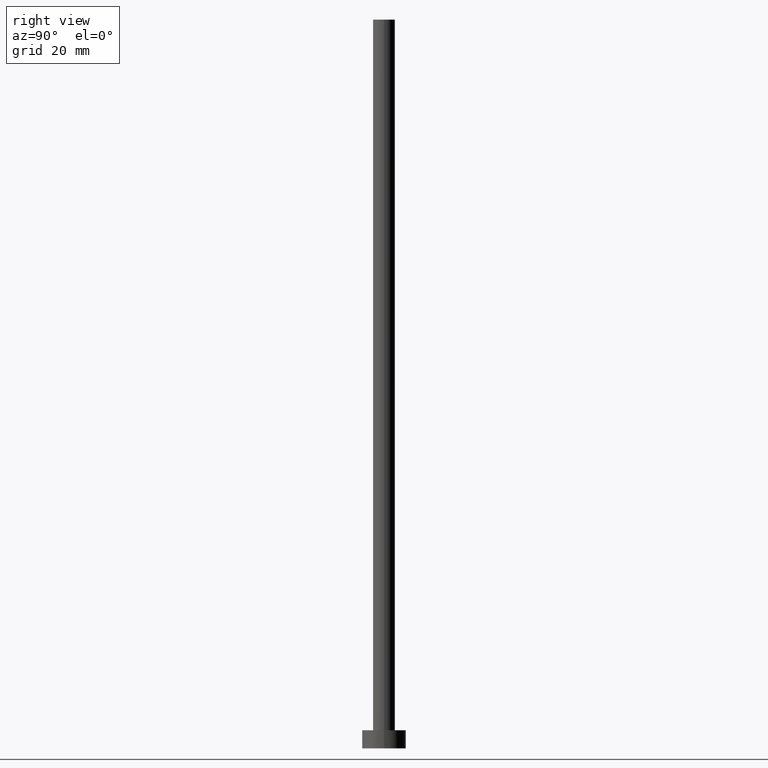
[diagram: clean part render]
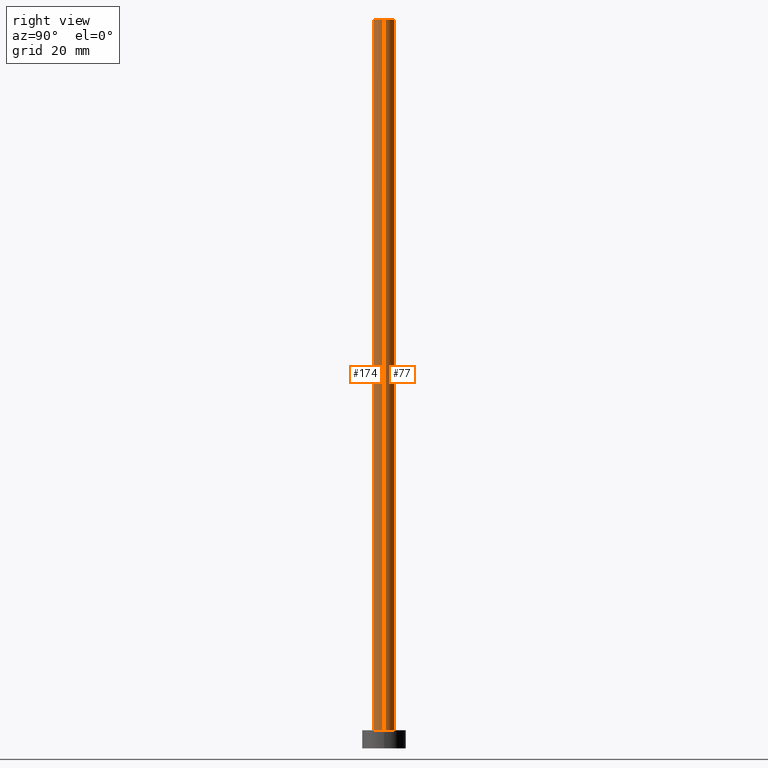
[diagram: same view with one multi-face feature highlighted, each face labeled with its STEP entity id]
A machine part, right view. The highlighted faces form ONE feature: a constant-radius fillet chain: 2 tangent blend faces with common blend radius 3 mm. The faces share edges in the B-rep.
Their STEP definitions:
[1] entity #174 (Cylinder):
#11 = AXIS2_PLACEMENT_3D ( 'NONE', #175, #195, #137 ) ;
#28 = AXIS2_PLACEMENT_3D ( 'NONE', #252, #197, #97 ) ;
#30 = ORIENTED_EDGE ( 'NONE', *, *, #102, .T. ) ;
#37 = VECTOR ( 'NONE', #78, 1000.000000000000000 ) ;
#38 = CYLINDRICAL_SURFACE ( 'NONE', #160, 3.000000000000000444 ) ;
#51 = CARTESIAN_POINT ( 'NONE',  ( 3.000000000000000444, 3.673940397442060361E-16, 200.0000000000000000 ) ) ;
#54 = CARTESIAN_POINT ( 'NONE',  ( 3.000000000000000444, 3.673940397442060361E-16, 200.0000000000000000 ) ) ;
#57 = CARTESIAN_POINT ( 'NONE',  ( -3.000000000000000444, 0.000000000000000000, 5.000000000000000000 ) ) ;
#60 = EDGE_CURVE ( 'NONE', #209, #64, #71, .T. ) ;
#64 = VERTEX_POINT ( 'NONE', #54 ) ;
#66 = VERTEX_POINT ( 'NONE', #247 ) ;
#67 = ORIENTED_EDGE ( 'NONE', *, *, #60, .F. ) ;
#69 = CARTESIAN_POINT ( 'NONE',  ( -3.000000000000000444, 0.000000000000000000, 200.0000000000000000 ) ) ;
#71 = CIRCLE ( 'NONE', #28, 3.000000000000000444 ) ;
#78 = DIRECTION ( 'NONE',  ( -0.000000000000000000, -0.000000000000000000, -1.000000000000000000 ) ) ;
#97 = DIRECTION ( 'NONE',  ( 1.000000000000000000, 0.000000000000000000, 0.000000000000000000 ) ) ;
#102 = EDGE_CURVE ( 'NONE', #209, #163, #193, .T. ) ;
#106 = ORIENTED_EDGE ( 'NONE', *, *, #108, .T. ) ;
#108 = EDGE_CURVE ( 'NONE', #163, #66, #218, .T. ) ;
#114 = FACE_OUTER_BOUND ( 'NONE', #126, .T. ) ;
#120 = VECTOR ( 'NONE', #138, 1000.000000000000000 ) ;
#126 = EDGE_LOOP ( 'NONE', ( #145, #67, #30, #106 ) ) ;
#131 = CARTESIAN_POINT ( 'NONE',  ( 0.000000000000000000, 0.000000000000000000, 200.0000000000000000 ) ) ;
#135 = EDGE_CURVE ( 'NONE', #64, #66, #249, .T. ) ;
#137 = DIRECTION ( 'NONE',  ( 1.000000000000000000, 0.000000000000000000, 0.000000000000000000 ) ) ;
#138 = DIRECTION ( 'NONE',  ( -0.000000000000000000, -0.000000000000000000, -1.000000000000000000 ) ) ;
#145 = ORIENTED_EDGE ( 'NONE', *, *, #135, .F. ) ;
#154 = DIRECTION ( 'NONE',  ( -1.000000000000000000, 0.000000000000000000, 0.000000000000000000 ) ) ;
#160 = AXIS2_PLACEMENT_3D ( 'NONE', #131, #172, #154 ) ;
#163 = VERTEX_POINT ( 'NONE', #57 ) ;
#172 = DIRECTION ( 'NONE',  ( -0.000000000000000000, -0.000000000000000000, -1.000000000000000000 ) ) ;
#174 = ADVANCED_FACE ( 'NONE', ( #114 ), #38, .T. ) ;
#175 = CARTESIAN_POINT ( 'NONE',  ( 0.000000000000000000, 0.000000000000000000, 5.000000000000000000 ) ) ;
#193 = LINE ( 'NONE', #69, #120 ) ;
#195 = DIRECTION ( 'NONE',  ( 0.000000000000000000, 0.000000000000000000, 1.000000000000000000 ) ) ;
#197 = DIRECTION ( 'NONE',  ( 0.000000000000000000, 0.000000000000000000, 1.000000000000000000 ) ) ;
#209 = VERTEX_POINT ( 'NONE', #248 ) ;
#218 = CIRCLE ( 'NONE', #11, 3.000000000000000444 ) ;
#247 = CARTESIAN_POINT ( 'NONE',  ( 3.000000000000000444, 3.673940397442060361E-16, 5.000000000000000000 ) ) ;
#248 = CARTESIAN_POINT ( 'NONE',  ( -3.000000000000000444, 0.000000000000000000, 200.0000000000000000 ) ) ;
#249 = LINE ( 'NONE', #51, #37 ) ;
#252 = CARTESIAN_POINT ( 'NONE',  ( 0.000000000000000000, 0.000000000000000000, 200.0000000000000000 ) ) ;
[2] entity #77 (Cylinder):
#13 = CARTESIAN_POINT ( 'NONE',  ( 0.000000000000000000, 0.000000000000000000, 5.000000000000000000 ) ) ;
#15 = DIRECTION ( 'NONE',  ( -1.000000000000000000, 0.000000000000000000, 0.000000000000000000 ) ) ;
#16 = CYLINDRICAL_SURFACE ( 'NONE', #151, 3.000000000000000444 ) ;
#27 = ORIENTED_EDGE ( 'NONE', *, *, #82, .F. ) ;
#37 = VECTOR ( 'NONE', #78, 1000.000000000000000 ) ;
#51 = CARTESIAN_POINT ( 'NONE',  ( 3.000000000000000444, 3.673940397442060361E-16, 200.0000000000000000 ) ) ;
#54 = CARTESIAN_POINT ( 'NONE',  ( 3.000000000000000444, 3.673940397442060361E-16, 200.0000000000000000 ) ) ;
#55 = DIRECTION ( 'NONE',  ( -0.000000000000000000, -0.000000000000000000, -1.000000000000000000 ) ) ;
#57 = CARTESIAN_POINT ( 'NONE',  ( -3.000000000000000444, 0.000000000000000000, 5.000000000000000000 ) ) ;
#64 = VERTEX_POINT ( 'NONE', #54 ) ;
#66 = VERTEX_POINT ( 'NONE', #247 ) ;
#69 = CARTESIAN_POINT ( 'NONE',  ( -3.000000000000000444, 0.000000000000000000, 200.0000000000000000 ) ) ;
#76 = DIRECTION ( 'NONE',  ( 0.000000000000000000, 0.000000000000000000, 1.000000000000000000 ) ) ;
#77 = ADVANCED_FACE ( 'NONE', ( #149 ), #16, .T. ) ;
#78 = DIRECTION ( 'NONE',  ( -0.000000000000000000, -0.000000000000000000, -1.000000000000000000 ) ) ;
#82 = EDGE_CURVE ( 'NONE', #64, #209, #230, .T. ) ;
#98 = DIRECTION ( 'NONE',  ( 1.000000000000000000, 0.000000000000000000, 0.000000000000000000 ) ) ;
#102 = EDGE_CURVE ( 'NONE', #209, #163, #193, .T. ) ;
#111 = CARTESIAN_POINT ( 'NONE',  ( 0.000000000000000000, 0.000000000000000000, 200.0000000000000000 ) ) ;
#117 = EDGE_CURVE ( 'NONE', #66, #163, #124, .T. ) ;
#120 = VECTOR ( 'NONE', #138, 1000.000000000000000 ) ;
#124 = CIRCLE ( 'NONE', #202, 3.000000000000000444 ) ;
#135 = EDGE_CURVE ( 'NONE', #64, #66, #249, .T. ) ;
#136 = CARTESIAN_POINT ( 'NONE',  ( 0.000000000000000000, 0.000000000000000000, 200.0000000000000000 ) ) ;
#138 = DIRECTION ( 'NONE',  ( -0.000000000000000000, -0.000000000000000000, -1.000000000000000000 ) ) ;
#146 = ORIENTED_EDGE ( 'NONE', *, *, #102, .F. ) ;
#149 = FACE_OUTER_BOUND ( 'NONE', #246, .T. ) ;
#151 = AXIS2_PLACEMENT_3D ( 'NONE', #111, #55, #15 ) ;
#155 = DIRECTION ( 'NONE',  ( 1.000000000000000000, 0.000000000000000000, 0.000000000000000000 ) ) ;
#163 = VERTEX_POINT ( 'NONE', #57 ) ;
#167 = ORIENTED_EDGE ( 'NONE', *, *, #135, .T. ) ;
#182 = AXIS2_PLACEMENT_3D ( 'NONE', #136, #76, #155 ) ;
#189 = ORIENTED_EDGE ( 'NONE', *, *, #117, .T. ) ;
#193 = LINE ( 'NONE', #69, #120 ) ;
#202 = AXIS2_PLACEMENT_3D ( 'NONE', #13, #236, #98 ) ;
#209 = VERTEX_POINT ( 'NONE', #248 ) ;
#230 = CIRCLE ( 'NONE', #182, 3.000000000000000444 ) ;
#236 = DIRECTION ( 'NONE',  ( 0.000000000000000000, 0.000000000000000000, 1.000000000000000000 ) ) ;
#246 = EDGE_LOOP ( 'NONE', ( #27, #167, #189, #146 ) ) ;
#247 = CARTESIAN_POINT ( 'NONE',  ( 3.000000000000000444, 3.673940397442060361E-16, 5.000000000000000000 ) ) ;
#248 = CARTESIAN_POINT ( 'NONE',  ( -3.000000000000000444, 0.000000000000000000, 200.0000000000000000 ) ) ;
#249 = LINE ( 'NONE', #51, #37 ) ;